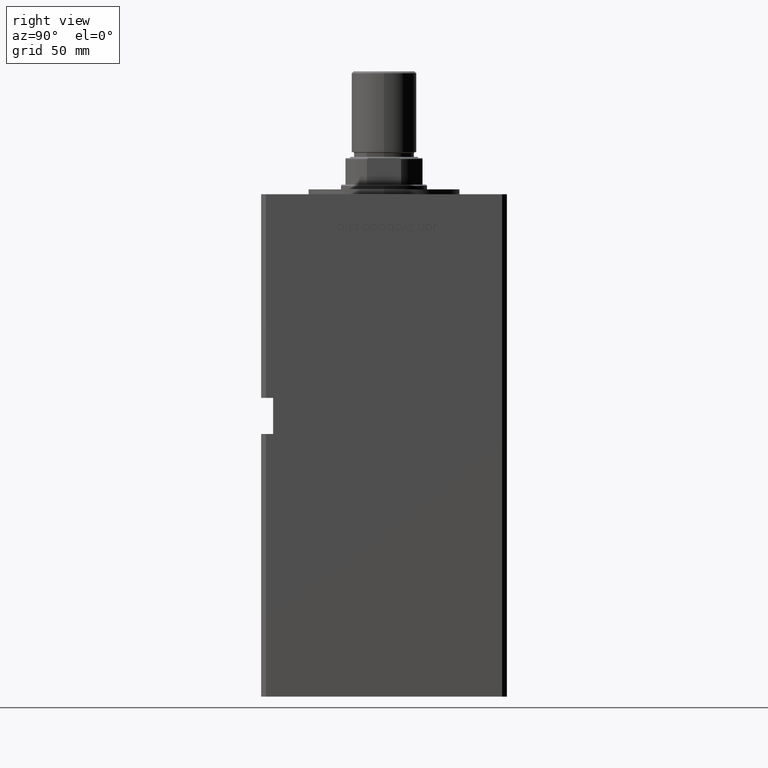
[diagram: clean part render]
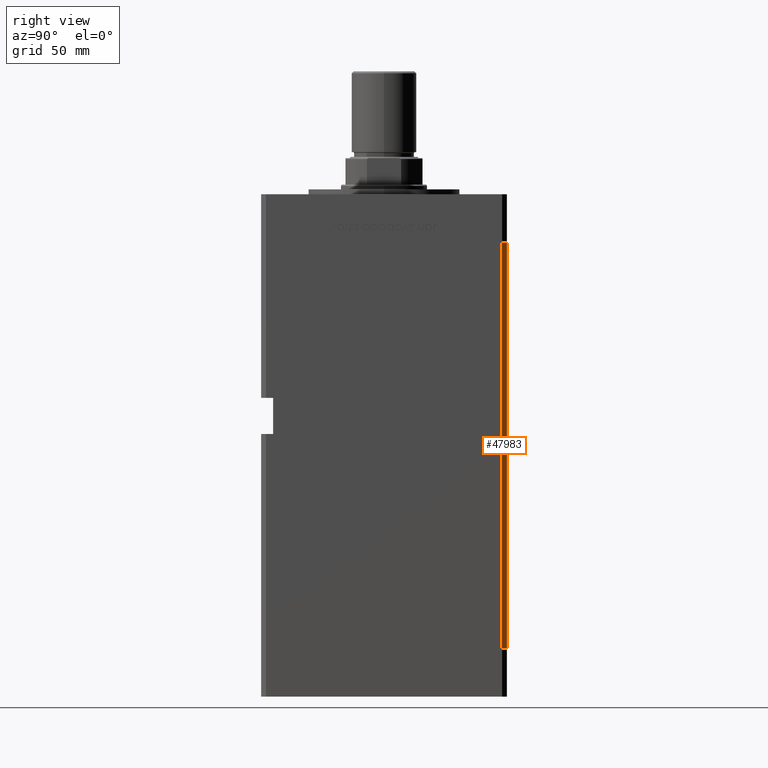
[diagram: same view with one face highlighted and labeled with its STEP entity id]
A machine part, right view. The second image highlights one B-rep face of the part: STEP entity #47983.
In plain terms, the highlighted planar face has unit normal (0.7071, 0.7071, 0).
Its self-contained STEP definition (entity closure, byte-faithful):
#1031 = CARTESIAN_POINT ( 'NONE',  ( 60.00000000000001421, 49.00000000000000000, 168.5000000000000000 ) ) ;
#2849 = EDGE_LOOP ( 'NONE', ( #22283, #23981, #38357, #19852 ) ) ;
#10257 = DIRECTION ( 'NONE',  ( -0.000000000000000000, -0.000000000000000000, -1.000000000000000000 ) ) ;
#11070 = CARTESIAN_POINT ( 'NONE',  ( 57.99999999999999289, 51.00000000000000711, 168.5000000000000000 ) ) ;
#12584 = CARTESIAN_POINT ( 'NONE',  ( 57.99999999999999289, 51.00000000000000711, 168.5000000000000000 ) ) ;
#12979 = EDGE_CURVE ( 'NONE', #47466, #26406, #39022, .T. ) ;
#15314 = EDGE_CURVE ( 'NONE', #26406, #29561, #22156, .T. ) ;
#16388 = FACE_OUTER_BOUND ( 'NONE', #2849, .T. ) ;
#16581 = AXIS2_PLACEMENT_3D ( 'NONE', #12584, #32848, #48822 ) ;
#18115 = CARTESIAN_POINT ( 'NONE',  ( 60.00000000000001421, 49.00000000000000000, 168.5000000000000000 ) ) ;
#18781 = DIRECTION ( 'NONE',  ( 0.7071067811865500152, -0.7071067811865451302, 0.000000000000000000 ) ) ;
#19852 = ORIENTED_EDGE ( 'NONE', *, *, #15314, .T. ) ;
#22156 = LINE ( 'NONE', #18115, #44633 ) ;
#22173 = VECTOR ( 'NONE', #10257, 1000.000000000000000 ) ;
#22283 = ORIENTED_EDGE ( 'NONE', *, *, #50970, .F. ) ;
#23803 = CARTESIAN_POINT ( 'NONE',  ( 60.00000000000001421, 49.00000000000000000, 0.000000000000000000 ) ) ;
#23981 = ORIENTED_EDGE ( 'NONE', *, *, #37323, .F. ) ;
#26406 = VERTEX_POINT ( 'NONE', #1031 ) ;
#26882 = CARTESIAN_POINT ( 'NONE',  ( 57.99999999999999289, 51.00000000000000711, 168.5000000000000000 ) ) ;
#29561 = VERTEX_POINT ( 'NONE', #23803 ) ;
#31555 = CARTESIAN_POINT ( 'NONE',  ( 57.99999999999999289, 51.00000000000000711, 0.000000000000000000 ) ) ;
#32327 = PLANE ( 'NONE',  #16581 ) ;
#32848 = DIRECTION ( 'NONE',  ( 0.7071067811865451302, 0.7071067811865500152, -0.000000000000000000 ) ) ;
#35862 = LINE ( 'NONE', #31555, #44891 ) ;
#37323 = EDGE_CURVE ( 'NONE', #47466, #46052, #47286, .T. ) ;
#38357 = ORIENTED_EDGE ( 'NONE', *, *, #12979, .T. ) ;
#39022 = LINE ( 'NONE', #26882, #39392 ) ;
#39392 = VECTOR ( 'NONE', #18781, 1000.000000000000114 ) ;
#44633 = VECTOR ( 'NONE', #51351, 1000.000000000000000 ) ;
#44891 = VECTOR ( 'NONE', #45041, 1000.000000000000114 ) ;
#45041 = DIRECTION ( 'NONE',  ( 0.7071067811865500152, -0.7071067811865451302, 0.000000000000000000 ) ) ;
#46052 = VERTEX_POINT ( 'NONE', #53196 ) ;
#47286 = LINE ( 'NONE', #11070, #22173 ) ;
#47466 = VERTEX_POINT ( 'NONE', #51343 ) ;
#47983 = ADVANCED_FACE ( 'NONE', ( #16388 ), #32327, .T. ) ;
#48822 = DIRECTION ( 'NONE',  ( -0.7071067811865500152, 0.7071067811865451302, 0.000000000000000000 ) ) ;
#50970 = EDGE_CURVE ( 'NONE', #46052, #29561, #35862, .T. ) ;
#51343 = CARTESIAN_POINT ( 'NONE',  ( 57.99999999999999289, 51.00000000000000711, 168.5000000000000000 ) ) ;
#51351 = DIRECTION ( 'NONE',  ( -0.000000000000000000, -0.000000000000000000, -1.000000000000000000 ) ) ;
#53196 = CARTESIAN_POINT ( 'NONE',  ( 57.99999999999999289, 51.00000000000000711, 0.000000000000000000 ) ) ;